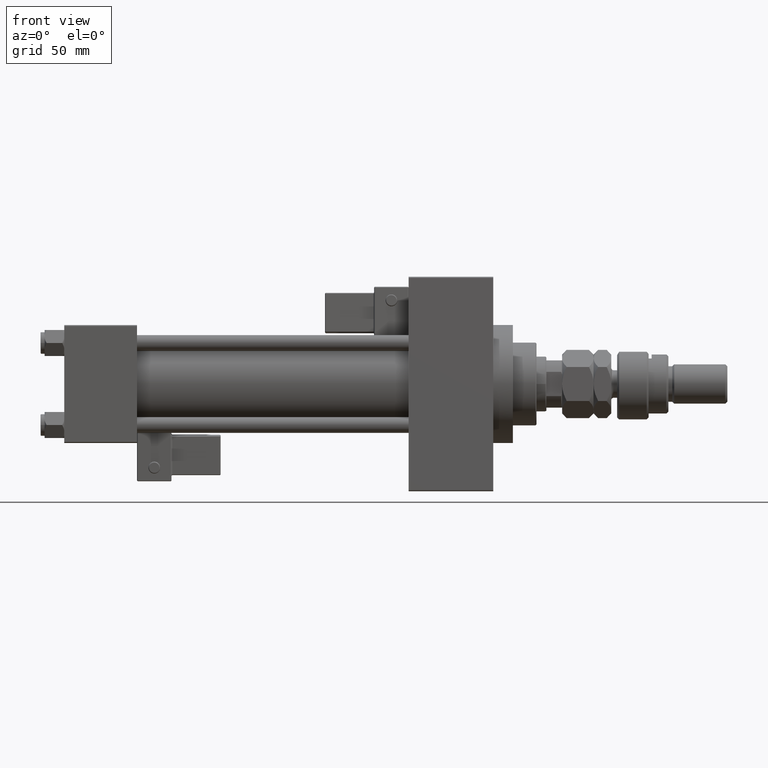
[diagram: clean part render]
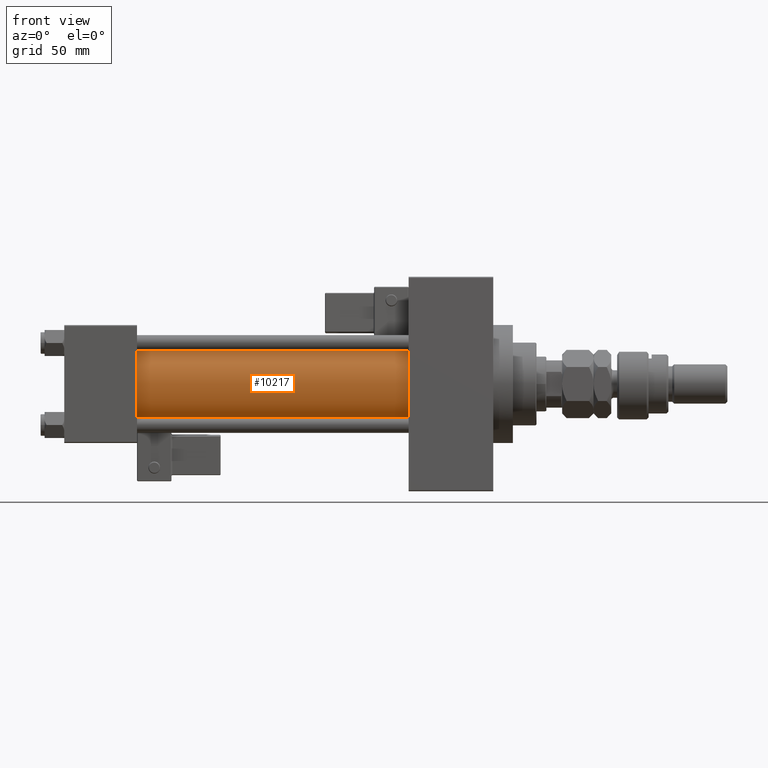
[diagram: same view with one face highlighted and labeled with its STEP entity id]
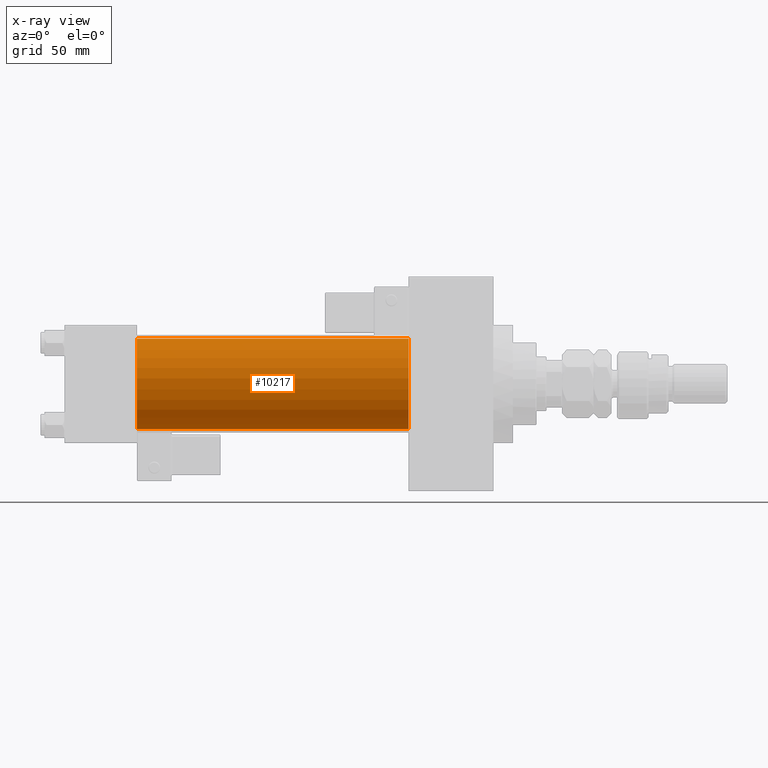
[diagram: x-ray of the same camera — body ghosted, the highlighted face saturated]
A machine part, front view. The second image highlights one B-rep face of the part: STEP entity #10217.
The next image is the same camera in x-ray: the body ghosted, the highlighted face saturated — about 0% of this face is hidden behind the body in this view.
In plain terms, the highlighted cylindrical surface (partial cylindrical patch) has radius 23 mm, axis along (-1, -0, -0).
Its self-contained STEP definition (entity closure, byte-faithful):
#530 = EDGE_LOOP ( 'NONE', ( #33668, #9645, #36385, #13863 ) ) ;
#1980 = CARTESIAN_POINT ( 'NONE',  ( 175.0000000000000284, 2.146024240737016609E-16, -23.00000000000000000 ) ) ;
#2667 = DIRECTION ( 'NONE',  ( 1.000000000000000000, -0.000000000000000000, 0.000000000000000000 ) ) ;
#4344 = DIRECTION ( 'NONE',  ( 0.000000000000000000, 0.000000000000000000, 1.000000000000000000 ) ) ;
#4864 = DIRECTION ( 'NONE',  ( -1.000000000000000000, -0.000000000000000000, -0.000000000000000000 ) ) ;
#5458 = DIRECTION ( 'NONE',  ( 1.000000000000000000, 0.000000000000000000, 0.000000000000000000 ) ) ;
#7030 = VERTEX_POINT ( 'NONE', #1980 ) ;
#9645 = ORIENTED_EDGE ( 'NONE', *, *, #35475, .F. ) ;
#10217 = ADVANCED_FACE ( 'NONE', ( #17048 ), #25856, .T. ) ;
#10795 = CARTESIAN_POINT ( 'NONE',  ( 37.00000000000000711, 2.146024240737016609E-16, -23.00000000000000000 ) ) ;
#11784 = CARTESIAN_POINT ( 'NONE',  ( 37.00000000000000711, -2.602085213965210642E-15, 0.000000000000000000 ) ) ;
#11901 = VERTEX_POINT ( 'NONE', #10795 ) ;
#12787 = VECTOR ( 'NONE', #15400, 1000.000000000000000 ) ;
#13464 = VERTEX_POINT ( 'NONE', #39676 ) ;
#13863 = ORIENTED_EDGE ( 'NONE', *, *, #15690, .T. ) ;
#15400 = DIRECTION ( 'NONE',  ( -1.000000000000000000, -0.000000000000000000, -0.000000000000000000 ) ) ;
#15690 = EDGE_CURVE ( 'NONE', #17803, #11901, #26644, .T. ) ;
#16437 = LINE ( 'NONE', #31984, #12787 ) ;
#16719 = CARTESIAN_POINT ( 'NONE',  ( 37.00000000000000711, -2.602085213965210642E-15, 23.00000000000000000 ) ) ;
#17048 = FACE_OUTER_BOUND ( 'NONE', #530, .T. ) ;
#17803 = VERTEX_POINT ( 'NONE', #16719 ) ;
#17896 = DIRECTION ( 'NONE',  ( 0.000000000000000000, 0.000000000000000000, -1.000000000000000000 ) ) ;
#20085 = VECTOR ( 'NONE', #31693, 1000.000000000000000 ) ;
#23944 = LINE ( 'NONE', #40254, #20085 ) ;
#25856 = CYLINDRICAL_SURFACE ( 'NONE', #37782, 23.00000000000000000 ) ;
#26644 = CIRCLE ( 'NONE', #35498, 23.00000000000000000 ) ;
#31483 = AXIS2_PLACEMENT_3D ( 'NONE', #34208, #5458, #17896 ) ;
#31693 = DIRECTION ( 'NONE',  ( -1.000000000000000000, -0.000000000000000000, -0.000000000000000000 ) ) ;
#31984 = CARTESIAN_POINT ( 'NONE',  ( 175.0000000000000284, -2.602085213965210642E-15, 23.00000000000000000 ) ) ;
#33668 = ORIENTED_EDGE ( 'NONE', *, *, #51193, .F. ) ;
#34208 = CARTESIAN_POINT ( 'NONE',  ( 175.0000000000000284, -2.602085213965210642E-15, 0.000000000000000000 ) ) ;
#35475 = EDGE_CURVE ( 'NONE', #13464, #7030, #45624, .T. ) ;
#35498 = AXIS2_PLACEMENT_3D ( 'NONE', #11784, #2667, #36381 ) ;
#36381 = DIRECTION ( 'NONE',  ( 0.000000000000000000, 0.000000000000000000, 1.000000000000000000 ) ) ;
#36385 = ORIENTED_EDGE ( 'NONE', *, *, #43207, .T. ) ;
#37782 = AXIS2_PLACEMENT_3D ( 'NONE', #38859, #4864, #4344 ) ;
#38859 = CARTESIAN_POINT ( 'NONE',  ( 175.0000000000000284, -2.602085213965210642E-15, 0.000000000000000000 ) ) ;
#39676 = CARTESIAN_POINT ( 'NONE',  ( 175.0000000000000284, -2.602085213965210642E-15, 23.00000000000000000 ) ) ;
#40254 = CARTESIAN_POINT ( 'NONE',  ( 175.0000000000000284, 2.146024240737016609E-16, -23.00000000000000000 ) ) ;
#43207 = EDGE_CURVE ( 'NONE', #13464, #17803, #16437, .T. ) ;
#45624 = CIRCLE ( 'NONE', #31483, 23.00000000000000000 ) ;
#51193 = EDGE_CURVE ( 'NONE', #7030, #11901, #23944, .T. ) ;